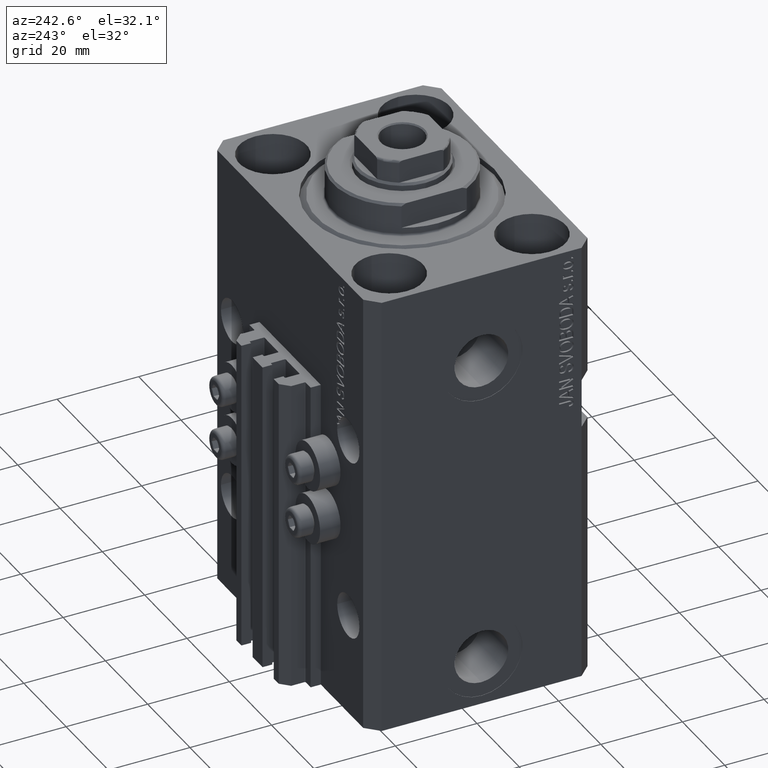
[diagram: clean part render]
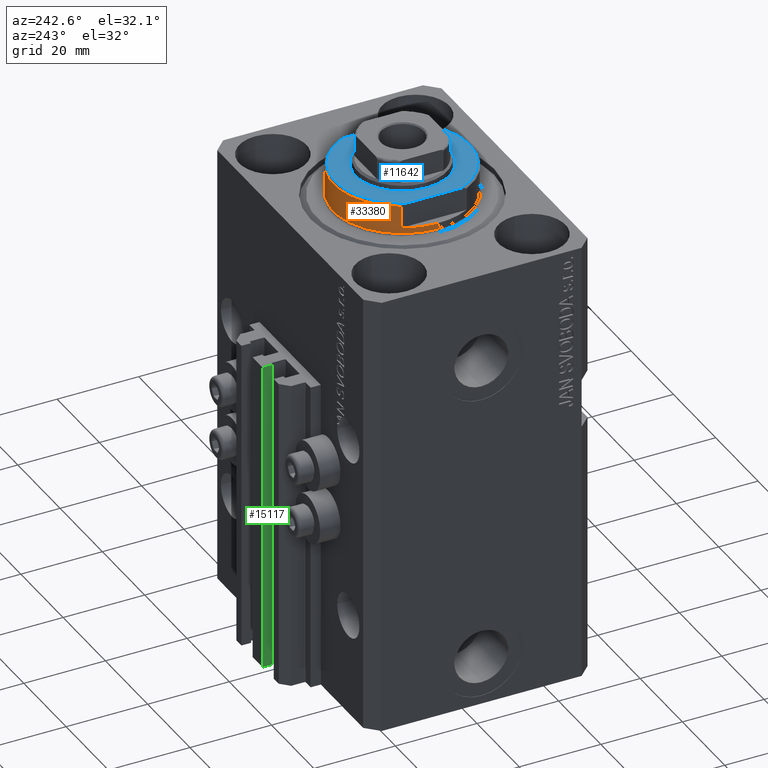
[diagram: same view with three faces highlighted in distinct colors, each labeled with its STEP entity id]
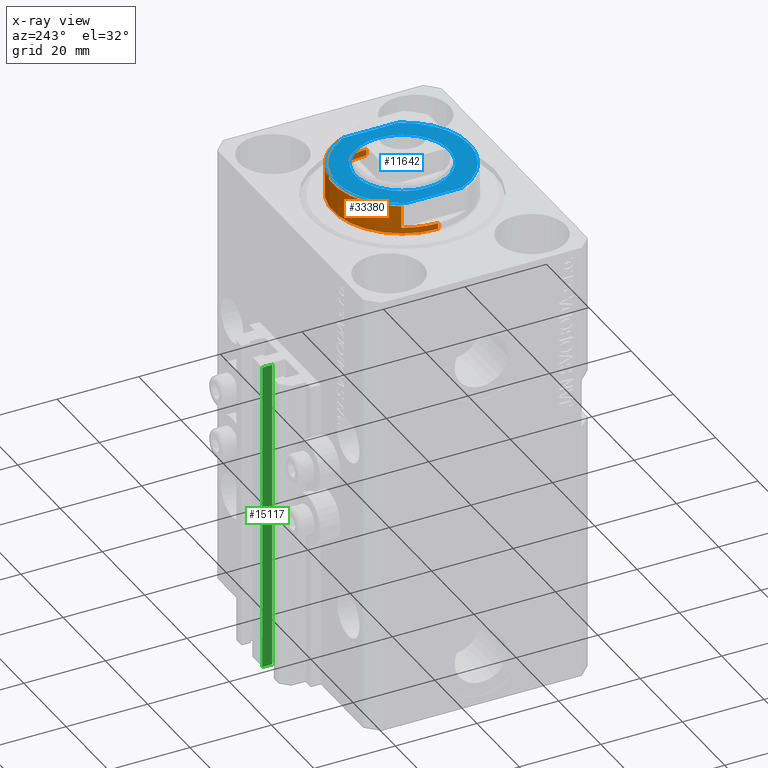
[diagram: x-ray of the same camera — body ghosted, the three highlighted faces saturated]
A machine part, auxiliary view with three faces highlighted in distinct colors.
The next image is the same camera in x-ray (body ghosted, the three faces saturated) — at least one of them is partly hidden behind the body in this view.
Their STEP definitions:

[orange] entity #33380 — the highlighted cylindrical surface (partial cylindrical patch) has radius 17 mm, axis along (0, 0, -1).
#34 = EDGE_CURVE ( 'NONE', #47323, #34484, #26527, .T. ) ;
#1329 = CARTESIAN_POINT ( 'NONE',  ( -17.00000000000000000, 2.081899558550500280E-15, -2.000000000000000000 ) ) ;
#2019 = LINE ( 'NONE', #43191, #2700 ) ;
#2056 = ORIENTED_EDGE ( 'NONE', *, *, #34920, .F. ) ;
#2700 = VECTOR ( 'NONE', #16652, 1000.000000000000000 ) ;
#3162 = EDGE_LOOP ( 'NONE', ( #44991, #19392, #23438, #18792, #36813, #2056, #3920, #11706 ) ) ;
#3523 = DIRECTION ( 'NONE',  ( 1.000000000000000000, 0.000000000000000000, 0.000000000000000000 ) ) ;
#3860 = LINE ( 'NONE', #32830, #20995 ) ;
#3920 = ORIENTED_EDGE ( 'NONE', *, *, #43466, .T. ) ;
#4347 = AXIS2_PLACEMENT_3D ( 'NONE', #36721, #21422, #10162 ) ;
#4662 = VERTEX_POINT ( 'NONE', #10907 ) ;
#5997 = DIRECTION ( 'NONE',  ( 0.000000000000000000, 0.000000000000000000, -1.000000000000000000 ) ) ;
#6195 = VERTEX_POINT ( 'NONE', #14936 ) ;
#8780 = CARTESIAN_POINT ( 'NONE',  ( 0.000000000000000000, 0.000000000000000000, -0.5000000000000004441 ) ) ;
#10162 = DIRECTION ( 'NONE',  ( -1.000000000000000000, 0.000000000000000000, 0.000000000000000000 ) ) ;
#10731 = EDGE_CURVE ( 'NONE', #34484, #31942, #3860, .T. ) ;
#10907 = CARTESIAN_POINT ( 'NONE',  ( 15.00000000000000000, 8.000000000000001776, -7.500000000000007105 ) ) ;
#11706 = ORIENTED_EDGE ( 'NONE', *, *, #13329, .T. ) ;
#13329 = EDGE_CURVE ( 'NONE', #23924, #6195, #2019, .T. ) ;
#14558 = CARTESIAN_POINT ( 'NONE',  ( 0.000000000000000000, 0.000000000000000000, -8.000000000000000000 ) ) ;
#14936 = CARTESIAN_POINT ( 'NONE',  ( -14.99999999999999645, 8.000000000000003553, -2.000000000000000000 ) ) ;
#15068 = DIRECTION ( 'NONE',  ( -0.000000000000000000, -0.000000000000000000, 1.000000000000000000 ) ) ;
#15874 = LINE ( 'NONE', #45066, #41478 ) ;
#16359 = EDGE_CURVE ( 'NONE', #44141, #6195, #35685, .T. ) ;
#16584 = AXIS2_PLACEMENT_3D ( 'NONE', #29139, #5997, #20833 ) ;
#16652 = DIRECTION ( 'NONE',  ( -0.000000000000000000, -0.000000000000000000, 1.000000000000000000 ) ) ;
#18792 = ORIENTED_EDGE ( 'NONE', *, *, #10731, .F. ) ;
#19392 = ORIENTED_EDGE ( 'NONE', *, *, #41156, .T. ) ;
#20833 = DIRECTION ( 'NONE',  ( -1.000000000000000000, 0.000000000000000000, 0.000000000000000000 ) ) ;
#20995 = VECTOR ( 'NONE', #44076, 1000.000000000000000 ) ;
#21071 = CIRCLE ( 'NONE', #45523, 17.00000000000000000 ) ;
#21212 = CIRCLE ( 'NONE', #4347, 17.00000000000000000 ) ;
#21422 = DIRECTION ( 'NONE',  ( 0.000000000000000000, 0.000000000000000000, 1.000000000000000000 ) ) ;
#21974 = DIRECTION ( 'NONE',  ( -0.000000000000000000, -0.000000000000000000, 1.000000000000000000 ) ) ;
#22725 = LINE ( 'NONE', #33483, #24146 ) ;
#23290 = DIRECTION ( 'NONE',  ( -0.000000000000000000, -0.000000000000000000, 1.000000000000000000 ) ) ;
#23438 = ORIENTED_EDGE ( 'NONE', *, *, #40404, .T. ) ;
#23924 = VERTEX_POINT ( 'NONE', #45089 ) ;
#24146 = VECTOR ( 'NONE', #15068, 1000.000000000000000 ) ;
#24892 = CARTESIAN_POINT ( 'NONE',  ( 17.00000000000000000, 0.000000000000000000, -0.5000000000000004441 ) ) ;
#26527 = CIRCLE ( 'NONE', #39496, 17.00000000000000000 ) ;
#29139 = CARTESIAN_POINT ( 'NONE',  ( 0.000000000000000000, 0.000000000000000000, -2.000000000000000000 ) ) ;
#30533 = CARTESIAN_POINT ( 'NONE',  ( 17.00000000000000000, 0.000000000000000000, -2.000000000000000000 ) ) ;
#31942 = VERTEX_POINT ( 'NONE', #24892 ) ;
#32830 = CARTESIAN_POINT ( 'NONE',  ( 17.00000000000000000, 0.000000000000000000, -8.000000000000000000 ) ) ;
#33380 = ADVANCED_FACE ( 'NONE', ( #40847 ), #44440, .T. ) ;
#33483 = CARTESIAN_POINT ( 'NONE',  ( -17.00000000000000000, 2.081899558550500280E-15, -8.000000000000000000 ) ) ;
#34395 = DIRECTION ( 'NONE',  ( 1.000000000000000000, 0.000000000000000000, 0.000000000000000000 ) ) ;
#34484 = VERTEX_POINT ( 'NONE', #30533 ) ;
#34920 = EDGE_CURVE ( 'NONE', #4662, #47323, #15874, .T. ) ;
#35112 = DIRECTION ( 'NONE',  ( -0.000000000000000000, -0.000000000000000000, -1.000000000000000000 ) ) ;
#35685 = CIRCLE ( 'NONE', #16584, 17.00000000000000000 ) ;
#36721 = CARTESIAN_POINT ( 'NONE',  ( 0.000000000000000000, 0.000000000000000000, -7.500000000000007105 ) ) ;
#36813 = ORIENTED_EDGE ( 'NONE', *, *, #34, .F. ) ;
#38675 = DIRECTION ( 'NONE',  ( 0.000000000000000000, 0.000000000000000000, -1.000000000000000000 ) ) ;
#38912 = CARTESIAN_POINT ( 'NONE',  ( 0.000000000000000000, 0.000000000000000000, -2.000000000000000000 ) ) ;
#39496 = AXIS2_PLACEMENT_3D ( 'NONE', #38912, #38675, #42262 ) ;
#40404 = EDGE_CURVE ( 'NONE', #43992, #31942, #21071, .T. ) ;
#40847 = FACE_OUTER_BOUND ( 'NONE', #3162, .T. ) ;
#41156 = EDGE_CURVE ( 'NONE', #44141, #43992, #22725, .T. ) ;
#41478 = VECTOR ( 'NONE', #23290, 1000.000000000000000 ) ;
#42262 = DIRECTION ( 'NONE',  ( -1.000000000000000000, 0.000000000000000000, 0.000000000000000000 ) ) ;
#43191 = CARTESIAN_POINT ( 'NONE',  ( -15.00000000000000000, 8.000000000000001776, -8.000000000000000000 ) ) ;
#43466 = EDGE_CURVE ( 'NONE', #4662, #23924, #21212, .T. ) ;
#43992 = VERTEX_POINT ( 'NONE', #45972 ) ;
#44076 = DIRECTION ( 'NONE',  ( -0.000000000000000000, -0.000000000000000000, 1.000000000000000000 ) ) ;
#44141 = VERTEX_POINT ( 'NONE', #1329 ) ;
#44440 = CYLINDRICAL_SURFACE ( 'NONE', #46047, 17.00000000000000000 ) ;
#44991 = ORIENTED_EDGE ( 'NONE', *, *, #16359, .F. ) ;
#45066 = CARTESIAN_POINT ( 'NONE',  ( 15.00000000000000000, 8.000000000000001776, -8.000000000000000000 ) ) ;
#45089 = CARTESIAN_POINT ( 'NONE',  ( -15.00000000000000000, 8.000000000000001776, -7.500000000000007105 ) ) ;
#45523 = AXIS2_PLACEMENT_3D ( 'NONE', #8780, #35112, #34395 ) ;
#45972 = CARTESIAN_POINT ( 'NONE',  ( -17.00000000000000000, 2.081899558550500280E-15, -0.5000000000000004441 ) ) ;
#46047 = AXIS2_PLACEMENT_3D ( 'NONE', #14558, #21974, #3523 ) ;
#46660 = CARTESIAN_POINT ( 'NONE',  ( 14.99999999999999645, 8.000000000000003553, -2.000000000000000000 ) ) ;
#47323 = VERTEX_POINT ( 'NONE', #46660 ) ;

[blue] entity #11642 — the highlighted planar face has unit normal (0, 0, 1).
#1403 = CARTESIAN_POINT ( 'NONE',  ( 15.00000000000000000, -42.42640687119285303, -8.000000000000000000 ) ) ;
#2434 = CARTESIAN_POINT ( 'NONE',  ( 0.000000000000000000, 0.000000000000000000, -8.000000000000000000 ) ) ;
#2496 = AXIS2_PLACEMENT_3D ( 'NONE', #2434, #31423, #27366 ) ;
#3928 = FACE_BOUND ( 'NONE', #35530, .T. ) ;
#4170 = FACE_OUTER_BOUND ( 'NONE', #44794, .T. ) ;
#4283 = DIRECTION ( 'NONE',  ( -0.000000000000000000, -0.000000000000000000, 1.000000000000000000 ) ) ;
#4408 = DIRECTION ( 'NONE',  ( 0.000000000000000000, 0.000000000000000000, -1.000000000000000000 ) ) ;
#4863 = CARTESIAN_POINT ( 'NONE',  ( -14.99999999999999645, -6.873863542433765517, -8.000000000000000000 ) ) ;
#4996 = DIRECTION ( 'NONE',  ( 0.000000000000000000, 0.000000000000000000, -1.000000000000000000 ) ) ;
#5704 = CARTESIAN_POINT ( 'NONE',  ( 0.000000000000000000, 0.000000000000000000, -8.000000000000000000 ) ) ;
#5880 = CARTESIAN_POINT ( 'NONE',  ( 0.000000000000000000, 0.000000000000000000, -8.000000000000000000 ) ) ;
#7232 = ORIENTED_EDGE ( 'NONE', *, *, #11507, .T. ) ;
#7242 = VERTEX_POINT ( 'NONE', #33777 ) ;
#7988 = CIRCLE ( 'NONE', #40105, 16.50000000000000000 ) ;
#9018 = ORIENTED_EDGE ( 'NONE', *, *, #30860, .T. ) ;
#9480 = ORIENTED_EDGE ( 'NONE', *, *, #30275, .T. ) ;
#11292 = CARTESIAN_POINT ( 'NONE',  ( 11.50000000000000355, 1.408343819019456570E-15, -8.000000000000000000 ) ) ;
#11507 = EDGE_CURVE ( 'NONE', #44476, #7242, #7988, .T. ) ;
#11642 = ADVANCED_FACE ( 'NONE', ( #3928, #4170 ), #44150, .T. ) ;
#11765 = DIRECTION ( 'NONE',  ( -0.000000000000000000, -1.000000000000000000, -0.000000000000000000 ) ) ;
#14445 = VERTEX_POINT ( 'NONE', #4863 ) ;
#15012 = CARTESIAN_POINT ( 'NONE',  ( -11.50000000000000355, 0.000000000000000000, -8.000000000000000000 ) ) ;
#15426 = CARTESIAN_POINT ( 'NONE',  ( 0.000000000000000000, 0.000000000000000000, -8.000000000000000000 ) ) ;
#15806 = VECTOR ( 'NONE', #11765, 1000.000000000000000 ) ;
#16202 = VERTEX_POINT ( 'NONE', #11292 ) ;
#16392 = VERTEX_POINT ( 'NONE', #15012 ) ;
#16983 = EDGE_CURVE ( 'NONE', #44476, #14445, #25909, .T. ) ;
#19594 = AXIS2_PLACEMENT_3D ( 'NONE', #5704, #4996, #27501 ) ;
#20083 = CIRCLE ( 'NONE', #42239, 11.50000000000000355 ) ;
#22494 = CARTESIAN_POINT ( 'NONE',  ( 0.000000000000000000, 0.000000000000000000, -8.000000000000000000 ) ) ;
#24080 = DIRECTION ( 'NONE',  ( -1.000000000000000000, 0.000000000000000000, 0.000000000000000000 ) ) ;
#24390 = EDGE_CURVE ( 'NONE', #7242, #24687, #44504, .T. ) ;
#24500 = CARTESIAN_POINT ( 'NONE',  ( -14.99999999999999645, 6.873863542433765517, -8.000000000000000000 ) ) ;
#24687 = VERTEX_POINT ( 'NONE', #43736 ) ;
#25909 = LINE ( 'NONE', #40492, #15806 ) ;
#27366 = DIRECTION ( 'NONE',  ( -1.000000000000000000, 0.000000000000000000, 0.000000000000000000 ) ) ;
#27501 = DIRECTION ( 'NONE',  ( -1.000000000000000000, 0.000000000000000000, 0.000000000000000000 ) ) ;
#27859 = ORIENTED_EDGE ( 'NONE', *, *, #16983, .F. ) ;
#28118 = CIRCLE ( 'NONE', #19594, 16.50000000000000000 ) ;
#30275 = EDGE_CURVE ( 'NONE', #16392, #16202, #33841, .T. ) ;
#30860 = EDGE_CURVE ( 'NONE', #16202, #16392, #20083, .T. ) ;
#31423 = DIRECTION ( 'NONE',  ( -0.000000000000000000, -0.000000000000000000, 1.000000000000000000 ) ) ;
#33493 = DIRECTION ( 'NONE',  ( -1.000000000000000000, 0.000000000000000000, 0.000000000000000000 ) ) ;
#33777 = CARTESIAN_POINT ( 'NONE',  ( 14.99999999999999645, 6.873863542433765517, -8.000000000000000000 ) ) ;
#33841 = CIRCLE ( 'NONE', #2496, 11.50000000000000355 ) ;
#35530 = EDGE_LOOP ( 'NONE', ( #9480, #9018 ) ) ;
#36501 = DIRECTION ( 'NONE',  ( -1.000000000000000000, 0.000000000000000000, -0.000000000000000000 ) ) ;
#38573 = AXIS2_PLACEMENT_3D ( 'NONE', #15426, #4408, #36501 ) ;
#40105 = AXIS2_PLACEMENT_3D ( 'NONE', #5880, #42253, #24080 ) ;
#40400 = ORIENTED_EDGE ( 'NONE', *, *, #24390, .T. ) ;
#40492 = CARTESIAN_POINT ( 'NONE',  ( -15.00000000000000000, -42.42640687119285303, -8.000000000000000000 ) ) ;
#41150 = DIRECTION ( 'NONE',  ( 0.000000000000000000, -1.000000000000000000, -0.000000000000000000 ) ) ;
#42219 = ORIENTED_EDGE ( 'NONE', *, *, #45217, .T. ) ;
#42239 = AXIS2_PLACEMENT_3D ( 'NONE', #22494, #4283, #33493 ) ;
#42253 = DIRECTION ( 'NONE',  ( 0.000000000000000000, 0.000000000000000000, -1.000000000000000000 ) ) ;
#42682 = VECTOR ( 'NONE', #41150, 1000.000000000000000 ) ;
#43736 = CARTESIAN_POINT ( 'NONE',  ( 14.99999999999999645, -6.873863542433765517, -8.000000000000000000 ) ) ;
#44150 = PLANE ( 'NONE',  #38573 ) ;
#44476 = VERTEX_POINT ( 'NONE', #24500 ) ;
#44504 = LINE ( 'NONE', #1403, #42682 ) ;
#44794 = EDGE_LOOP ( 'NONE', ( #7232, #40400, #42219, #27859 ) ) ;
#45217 = EDGE_CURVE ( 'NONE', #24687, #14445, #28118, .T. ) ;

[green] entity #15117 — the highlighted planar face has unit normal (-1, -0, 0).
#1628 = EDGE_CURVE ( 'NONE', #7134, #10676, #15570, .T. ) ;
#2854 = CARTESIAN_POINT ( 'NONE',  ( -2.350000000000003642, 35.50000000000001421, -110.0000000000000000 ) ) ;
#3029 = CARTESIAN_POINT ( 'NONE',  ( -2.350000000000003642, 35.50000000000001421, -33.00000000000000000 ) ) ;
#3638 = EDGE_LOOP ( 'NONE', ( #27771, #16483, #8471, #35227 ) ) ;
#4621 = CARTESIAN_POINT ( 'NONE',  ( -2.350000000000003642, 35.50000000000001421, -110.0000000000000000 ) ) ;
#7134 = VERTEX_POINT ( 'NONE', #27909 ) ;
#8471 = ORIENTED_EDGE ( 'NONE', *, *, #35799, .T. ) ;
#9087 = LINE ( 'NONE', #3029, #42611 ) ;
#9771 = VECTOR ( 'NONE', #33496, 1000.000000000000000 ) ;
#10269 = PLANE ( 'NONE',  #24953 ) ;
#10676 = VERTEX_POINT ( 'NONE', #40479 ) ;
#15117 = ADVANCED_FACE ( 'NONE', ( #31358 ), #10269, .T. ) ;
#15570 = LINE ( 'NONE', #44996, #42162 ) ;
#16483 = ORIENTED_EDGE ( 'NONE', *, *, #1628, .F. ) ;
#18619 = VECTOR ( 'NONE', #30486, 1000.000000000000000 ) ;
#18910 = LINE ( 'NONE', #34418, #9771 ) ;
#19063 = CARTESIAN_POINT ( 'NONE',  ( -2.350000000000003197, 33.10000000000000853, -33.00000000000000000 ) ) ;
#21097 = VERTEX_POINT ( 'NONE', #19063 ) ;
#21999 = EDGE_CURVE ( 'NONE', #10676, #21097, #9087, .T. ) ;
#23050 = EDGE_CURVE ( 'NONE', #29366, #21097, #18910, .T. ) ;
#23051 = CARTESIAN_POINT ( 'NONE',  ( -2.350000000000003197, 33.10000000000000853, -110.0000000000000000 ) ) ;
#24953 = AXIS2_PLACEMENT_3D ( 'NONE', #2854, #27773, #34693 ) ;
#27771 = ORIENTED_EDGE ( 'NONE', *, *, #21999, .F. ) ;
#27773 = DIRECTION ( 'NONE',  ( -1.000000000000000000, -1.807003620809174632E-16, 0.000000000000000000 ) ) ;
#27909 = CARTESIAN_POINT ( 'NONE',  ( -2.350000000000003642, 35.50000000000001421, -110.0000000000000000 ) ) ;
#28663 = DIRECTION ( 'NONE',  ( 1.807003620809174632E-16, -1.000000000000000000, 0.000000000000000000 ) ) ;
#29366 = VERTEX_POINT ( 'NONE', #23051 ) ;
#30486 = DIRECTION ( 'NONE',  ( 1.807003620809174632E-16, -1.000000000000000000, 0.000000000000000000 ) ) ;
#30638 = DIRECTION ( 'NONE',  ( 0.000000000000000000, 0.000000000000000000, 1.000000000000000000 ) ) ;
#31358 = FACE_OUTER_BOUND ( 'NONE', #3638, .T. ) ;
#33496 = DIRECTION ( 'NONE',  ( 0.000000000000000000, 0.000000000000000000, 1.000000000000000000 ) ) ;
#34418 = CARTESIAN_POINT ( 'NONE',  ( -2.350000000000003197, 33.10000000000000853, -110.0000000000000000 ) ) ;
#34693 = DIRECTION ( 'NONE',  ( 1.807003620809174632E-16, -1.000000000000000000, 0.000000000000000000 ) ) ;
#35227 = ORIENTED_EDGE ( 'NONE', *, *, #23050, .T. ) ;
#35799 = EDGE_CURVE ( 'NONE', #7134, #29366, #40531, .T. ) ;
#40479 = CARTESIAN_POINT ( 'NONE',  ( -2.350000000000003642, 35.50000000000001421, -33.00000000000000000 ) ) ;
#40531 = LINE ( 'NONE', #4621, #18619 ) ;
#42162 = VECTOR ( 'NONE', #30638, 1000.000000000000000 ) ;
#42611 = VECTOR ( 'NONE', #28663, 1000.000000000000000 ) ;
#44996 = CARTESIAN_POINT ( 'NONE',  ( -2.350000000000003642, 35.50000000000001421, -110.0000000000000000 ) ) ;